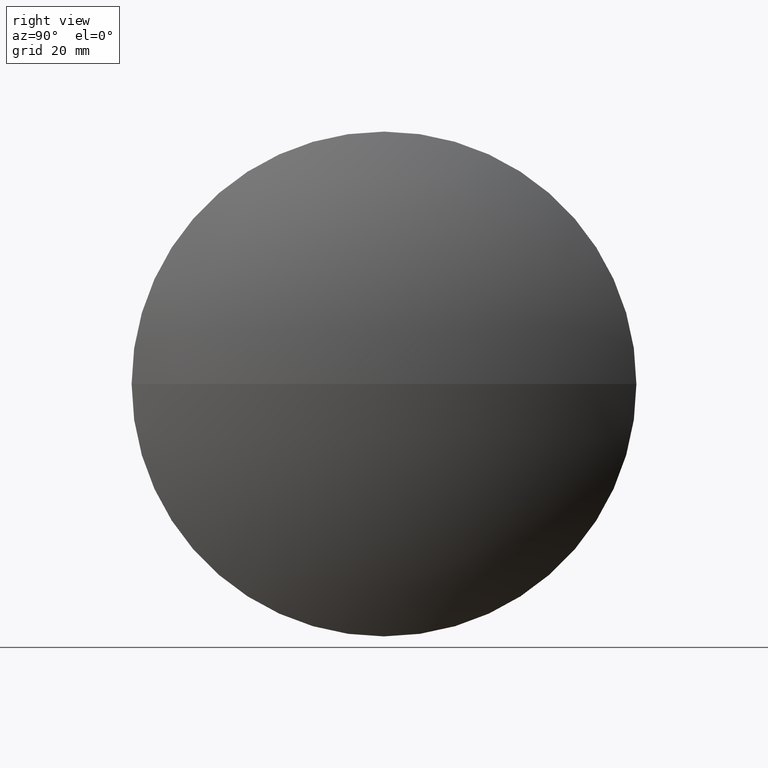
[diagram: clean part render]
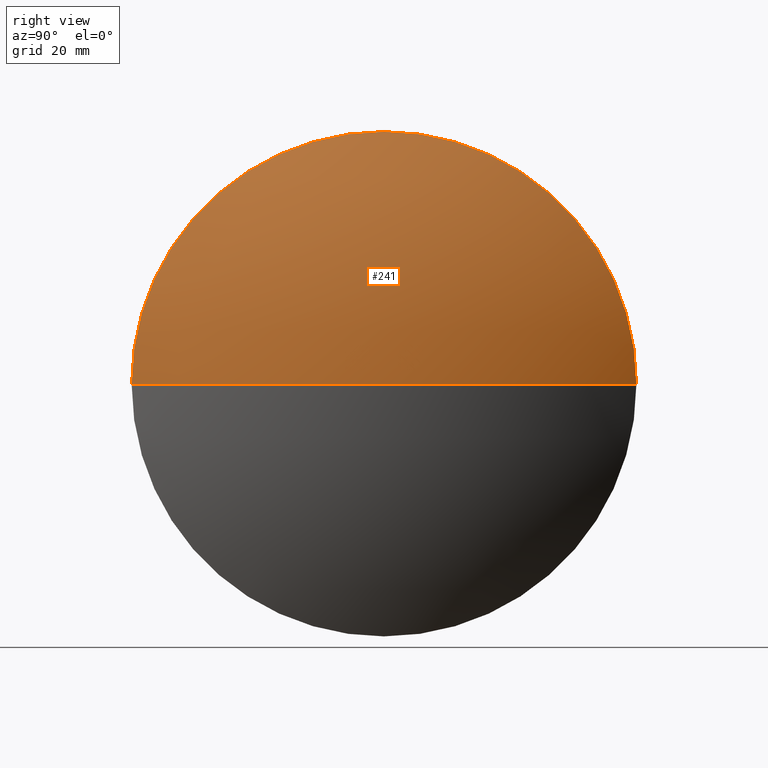
[diagram: same view with one face highlighted and labeled with its STEP entity id]
A machine part, right view. The second image highlights one B-rep face of the part: STEP entity #241.
In plain terms, the highlighted spherical surface has radius 97.723 mm.
Its self-contained STEP definition (entity closure, byte-faithful):
#1 = CARTESIAN_POINT ( 'NONE',  ( 342.3865896640226700, 191.4020197763163700, 0.0000000000000000000 ) ) ;
#6 = CARTESIAN_POINT ( 'NONE',  ( 258.4235664082096900, 191.4020197763163400, 0.0000000000000000000 ) ) ;
#8 = EDGE_CURVE ( 'NONE', #128, #105, #80, .T. ) ;
#60 = CARTESIAN_POINT ( 'NONE',  ( 258.4235664082096900, 191.4020197763163400, 0.0000000000000000000 ) ) ;
#67 = FACE_OUTER_BOUND ( 'NONE', #83, .T. ) ;
#80 = CIRCLE ( 'NONE', #127, 49.99999999999951700 ) ;
#83 = EDGE_LOOP ( 'NONE', ( #226, #253, #141, #150 ) ) ;
#91 = CARTESIAN_POINT ( 'NONE',  ( 342.3865896640226700, 191.4020197763163700, 0.0000000000000000000 ) ) ;
#96 = AXIS2_PLACEMENT_3D ( 'NONE', #91, #327, #123 ) ;
#105 = VERTEX_POINT ( 'NONE', #109 ) ;
#108 = EDGE_CURVE ( 'NONE', #169, #105, #296, .T. ) ;
#109 = CARTESIAN_POINT ( 'NONE',  ( 342.3865896640226700, 241.4020197763158800, 0.0000000000000000000 ) ) ;
#123 = DIRECTION ( 'NONE',  ( 0.0000000000000000000, 0.0000000000000000000, 1.000000000000000000 ) ) ;
#127 = AXIS2_PLACEMENT_3D ( 'NONE', #1, #213, #156 ) ;
#128 = VERTEX_POINT ( 'NONE', #189 ) ;
#133 = VERTEX_POINT ( 'NONE', #294 ) ;
#138 = DIRECTION ( 'NONE',  ( 0.0000000000000000000, 1.000000000000000000, 1.224646799147353500E-016 ) ) ;
#141 = ORIENTED_EDGE ( 'NONE', *, *, #8, .F. ) ;
#150 = ORIENTED_EDGE ( 'NONE', *, *, #248, .F. ) ;
#152 = AXIS2_PLACEMENT_3D ( 'NONE', #6, #324, #297 ) ;
#156 = DIRECTION ( 'NONE',  ( 0.0000000000000000000, 0.0000000000000000000, 1.000000000000000000 ) ) ;
#163 = AXIS2_PLACEMENT_3D ( 'NONE', #60, #295, #138 ) ;
#164 = DIRECTION ( 'NONE',  ( -0.0000000000000000000, 0.0000000000000000000, -1.000000000000000000 ) ) ;
#169 = VERTEX_POINT ( 'NONE', #309 ) ;
#189 = CARTESIAN_POINT ( 'NONE',  ( 342.3865896640226700, 191.4020197763163700, 49.99999999999951700 ) ) ;
#213 = DIRECTION ( 'NONE',  ( -1.000000000000000000, -0.0000000000000000000, -0.0000000000000000000 ) ) ;
#225 = DIRECTION ( 'NONE',  ( 0.0000000000000000000, 1.000000000000000000, 0.0000000000000000000 ) ) ;
#226 = ORIENTED_EDGE ( 'NONE', *, *, #271, .F. ) ;
#241 = ADVANCED_FACE ( 'NONE', ( #67 ), #341, .T. ) ;
#248 = EDGE_CURVE ( 'NONE', #133, #128, #269, .T. ) ;
#253 = ORIENTED_EDGE ( 'NONE', *, *, #108, .T. ) ;
#269 = CIRCLE ( 'NONE', #96, 49.99999999999951700 ) ;
#271 = EDGE_CURVE ( 'NONE', #169, #133, #315, .T. ) ;
#292 = AXIS2_PLACEMENT_3D ( 'NONE', #329, #164, #225 ) ;
#294 = CARTESIAN_POINT ( 'NONE',  ( 342.3865896640226700, 141.4020197763168200, -6.123233995736706100E-015 ) ) ;
#295 = DIRECTION ( 'NONE',  ( 0.0000000000000000000, 1.224646799147353200E-016, -1.000000000000000000 ) ) ;
#296 = CIRCLE ( 'NONE', #152, 97.72302325581289000 ) ;
#297 = DIRECTION ( 'NONE',  ( 1.000000000000000000, 0.0000000000000000000, 0.0000000000000000000 ) ) ;
#309 = CARTESIAN_POINT ( 'NONE',  ( 356.1465896640226000, 191.4020197763163400, 0.0000000000000000000 ) ) ;
#315 = CIRCLE ( 'NONE', #163, 97.72302325581289000 ) ;
#324 = DIRECTION ( 'NONE',  ( -0.0000000000000000000, 0.0000000000000000000, 1.000000000000000000 ) ) ;
#327 = DIRECTION ( 'NONE',  ( -1.000000000000000000, -0.0000000000000000000, -0.0000000000000000000 ) ) ;
#329 = CARTESIAN_POINT ( 'NONE',  ( 258.4235664082096900, 191.4020197763163400, 0.0000000000000000000 ) ) ;
#341 = SPHERICAL_SURFACE ( 'NONE', #292, 97.72302325581290500 ) ;